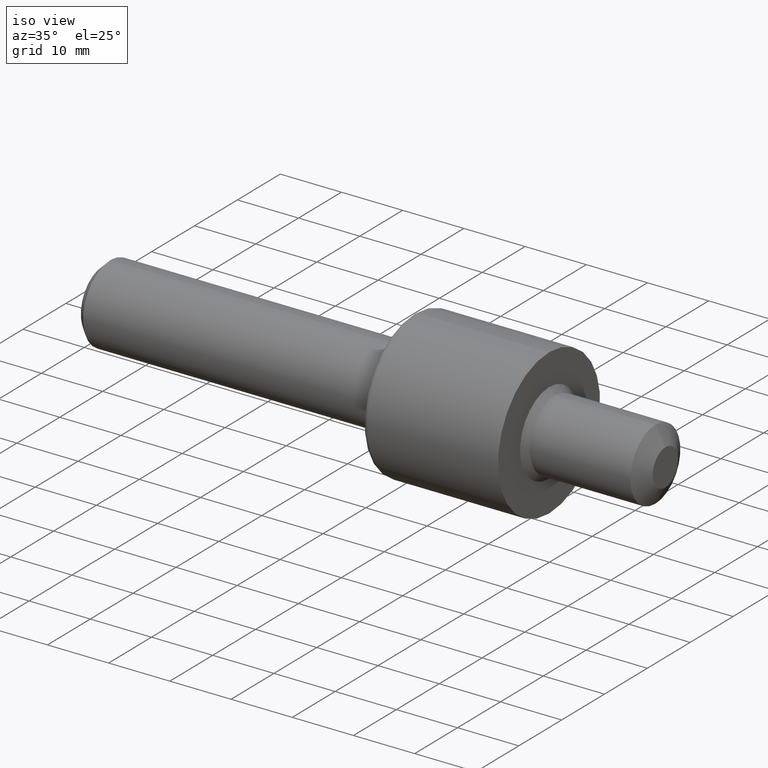
[diagram: clean part render]
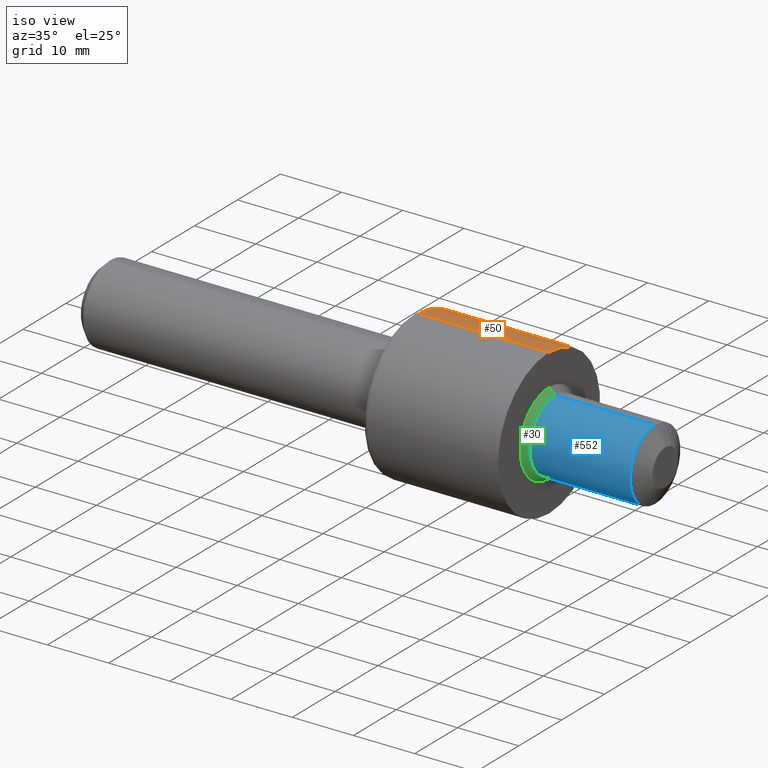
[diagram: same view with three faces highlighted in distinct colors, each labeled with its STEP entity id]
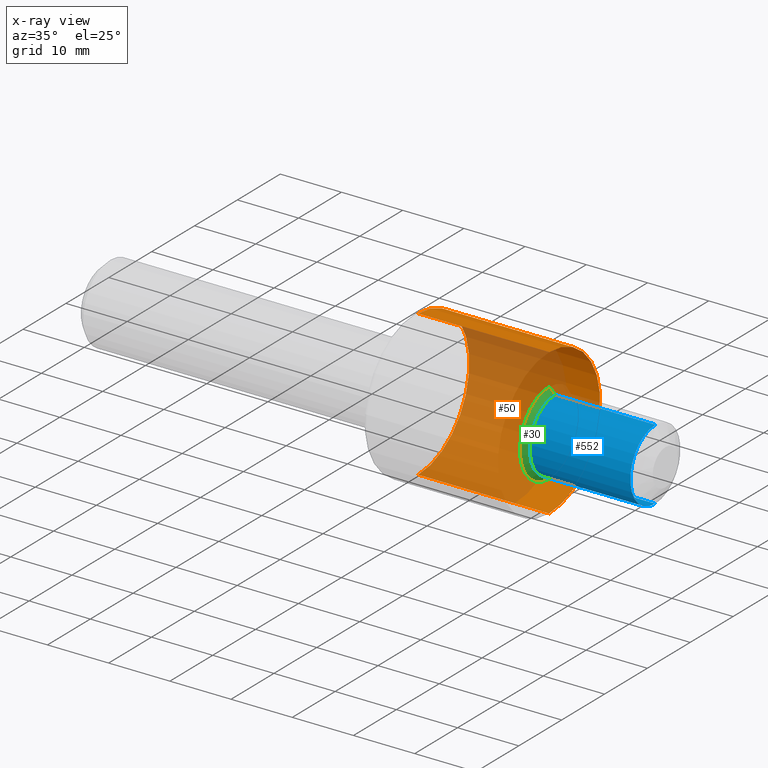
[diagram: x-ray of the same camera — body ghosted, the three highlighted faces saturated]
A machine part, iso view with three faces highlighted in distinct colors.
The next image is the same camera in x-ray (body ghosted, the three faces saturated) — at least one of them is partly hidden behind the body in this view.
Their STEP definitions:

[orange] entity #50 — the highlighted cylindrical surface (partial cylindrical patch) has radius 11.9126 mm, axis along (-1, -0, -0).
#4 = EDGE_CURVE ( 'NONE', #401, #381, #480, .T. ) ;
#14 = CARTESIAN_POINT ( 'NONE',  ( 2.871999999999999886, 5.743593488001086150E-17, -0.4689999999999999725 ) ) ;
#43 = DIRECTION ( 'NONE',  ( 0.0000000000000000000, 0.0000000000000000000, 1.000000000000000000 ) ) ;
#50 = ADVANCED_FACE ( 'NONE', ( #192 ), #104, .T. ) ;
#80 = AXIS2_PLACEMENT_3D ( 'NONE', #294, #321, #541 ) ;
#97 = EDGE_CURVE ( 'NONE', #401, #270, #430, .T. ) ;
#104 = CYLINDRICAL_SURFACE ( 'NONE', #503, 0.4689999999999999725 ) ;
#107 = VERTEX_POINT ( 'NONE', #243 ) ;
#130 = DIRECTION ( 'NONE',  ( -1.000000000000000000, -0.0000000000000000000, -0.0000000000000000000 ) ) ;
#148 = EDGE_CURVE ( 'NONE', #381, #107, #353, .T. ) ;
#187 = EDGE_CURVE ( 'NONE', #270, #107, #188, .T. ) ;
#188 = LINE ( 'NONE', #404, #422 ) ;
#192 = FACE_OUTER_BOUND ( 'NONE', #359, .T. ) ;
#243 = CARTESIAN_POINT ( 'NONE',  ( 2.029999999999999805, 5.743593488001086150E-17, -0.4689999999999999725 ) ) ;
#260 = DIRECTION ( 'NONE',  ( 0.0000000000000000000, 0.0000000000000000000, 1.000000000000000000 ) ) ;
#270 = VERTEX_POINT ( 'NONE', #14 ) ;
#273 = ORIENTED_EDGE ( 'NONE', *, *, #187, .T. ) ;
#276 = DIRECTION ( 'NONE',  ( -1.000000000000000000, -0.0000000000000000000, -0.0000000000000000000 ) ) ;
#282 = VECTOR ( 'NONE', #561, 39.37007874015748143 ) ;
#294 = CARTESIAN_POINT ( 'NONE',  ( 2.029999999999999805, 0.0000000000000000000, 0.0000000000000000000 ) ) ;
#297 = CARTESIAN_POINT ( 'NONE',  ( 0.0000000000000000000, 0.0000000000000000000, 0.4689999999999999725 ) ) ;
#307 = CARTESIAN_POINT ( 'NONE',  ( 2.029999999999999805, 0.0000000000000000000, 0.4689999999999999725 ) ) ;
#321 = DIRECTION ( 'NONE',  ( -1.000000000000000000, -0.0000000000000000000, -0.0000000000000000000 ) ) ;
#331 = CARTESIAN_POINT ( 'NONE',  ( 2.871999999999999886, 0.0000000000000000000, 0.0000000000000000000 ) ) ;
#338 = AXIS2_PLACEMENT_3D ( 'NONE', #331, #563, #260 ) ;
#343 = ORIENTED_EDGE ( 'NONE', *, *, #4, .F. ) ;
#353 = CIRCLE ( 'NONE', #80, 0.4689999999999999725 ) ;
#359 = EDGE_LOOP ( 'NONE', ( #461, #273, #536, #343 ) ) ;
#381 = VERTEX_POINT ( 'NONE', #307 ) ;
#401 = VERTEX_POINT ( 'NONE', #532 ) ;
#404 = CARTESIAN_POINT ( 'NONE',  ( 0.0000000000000000000, 5.743593488001086150E-17, -0.4689999999999999725 ) ) ;
#422 = VECTOR ( 'NONE', #276, 39.37007874015748143 ) ;
#430 = CIRCLE ( 'NONE', #338, 0.4689999999999999725 ) ;
#461 = ORIENTED_EDGE ( 'NONE', *, *, #97, .T. ) ;
#480 = LINE ( 'NONE', #297, #282 ) ;
#503 = AXIS2_PLACEMENT_3D ( 'NONE', #555, #130, #43 ) ;
#532 = CARTESIAN_POINT ( 'NONE',  ( 2.871999999999999886, 0.0000000000000000000, 0.4689999999999999725 ) ) ;
#536 = ORIENTED_EDGE ( 'NONE', *, *, #148, .F. ) ;
#541 = DIRECTION ( 'NONE',  ( 0.0000000000000000000, 0.0000000000000000000, 1.000000000000000000 ) ) ;
#555 = CARTESIAN_POINT ( 'NONE',  ( 0.0000000000000000000, 0.0000000000000000000, 0.0000000000000000000 ) ) ;
#561 = DIRECTION ( 'NONE',  ( -1.000000000000000000, -0.0000000000000000000, -0.0000000000000000000 ) ) ;
#563 = DIRECTION ( 'NONE',  ( -1.000000000000000000, -0.0000000000000000000, -0.0000000000000000000 ) ) ;

[blue] entity #552 — the highlighted cylindrical surface (partial cylindrical patch) has radius 5.8293 mm, axis along (-1, -0, -0).
#29 = CARTESIAN_POINT ( 'NONE',  ( 3.555000000000000160, 2.810564404043175550E-17, -0.2295000000000000095 ) ) ;
#68 = ORIENTED_EDGE ( 'NONE', *, *, #115, .T. ) ;
#77 = AXIS2_PLACEMENT_3D ( 'NONE', #198, #174, #539 ) ;
#89 = VERTEX_POINT ( 'NONE', #222 ) ;
#103 = ORIENTED_EDGE ( 'NONE', *, *, #152, .F. ) ;
#113 = LINE ( 'NONE', #161, #410 ) ;
#115 = EDGE_CURVE ( 'NONE', #272, #89, #341, .T. ) ;
#122 = ORIENTED_EDGE ( 'NONE', *, *, #389, .T. ) ;
#132 = DIRECTION ( 'NONE',  ( 0.0000000000000000000, 0.0000000000000000000, 1.000000000000000000 ) ) ;
#152 = EDGE_CURVE ( 'NONE', #504, #207, #487, .T. ) ;
#161 = CARTESIAN_POINT ( 'NONE',  ( 0.0000000000000000000, 2.810564404043175550E-17, -0.2295000000000000095 ) ) ;
#174 = DIRECTION ( 'NONE',  ( -1.000000000000000000, -0.0000000000000000000, -0.0000000000000000000 ) ) ;
#176 = VECTOR ( 'NONE', #183, 39.37007874015748143 ) ;
#178 = CARTESIAN_POINT ( 'NONE',  ( 0.0000000000000000000, 0.0000000000000000000, 0.2295000000000000095 ) ) ;
#183 = DIRECTION ( 'NONE',  ( -1.000000000000000000, -0.0000000000000000000, -0.0000000000000000000 ) ) ;
#198 = CARTESIAN_POINT ( 'NONE',  ( 0.0000000000000000000, 0.0000000000000000000, 0.0000000000000000000 ) ) ;
#207 = VERTEX_POINT ( 'NONE', #322 ) ;
#212 = EDGE_LOOP ( 'NONE', ( #525, #68, #122, #103 ) ) ;
#222 = CARTESIAN_POINT ( 'NONE',  ( 3.555000000000000160, 0.0000000000000000000, 0.2295000000000000095 ) ) ;
#244 = DIRECTION ( 'NONE',  ( -1.000000000000000000, -0.0000000000000000000, -0.0000000000000000000 ) ) ;
#247 = DIRECTION ( 'NONE',  ( -1.000000000000000000, -0.0000000000000000000, -0.0000000000000000000 ) ) ;
#261 = FACE_OUTER_BOUND ( 'NONE', #212, .T. ) ;
#272 = VERTEX_POINT ( 'NONE', #29 ) ;
#313 = EDGE_CURVE ( 'NONE', #272, #504, #113, .T. ) ;
#322 = CARTESIAN_POINT ( 'NONE',  ( 2.909000000000002029, 0.0000000000000000000, 0.2295000000000000095 ) ) ;
#341 = CIRCLE ( 'NONE', #517, 0.2295000000000000095 ) ;
#389 = EDGE_CURVE ( 'NONE', #89, #207, #511, .T. ) ;
#410 = VECTOR ( 'NONE', #433, 39.37007874015748143 ) ;
#433 = DIRECTION ( 'NONE',  ( -1.000000000000000000, -0.0000000000000000000, -0.0000000000000000000 ) ) ;
#482 = CYLINDRICAL_SURFACE ( 'NONE', #77, 0.2295000000000000095 ) ;
#483 = DIRECTION ( 'NONE',  ( 0.0000000000000000000, 0.0000000000000000000, 1.000000000000000000 ) ) ;
#487 = CIRCLE ( 'NONE', #531, 0.2295000000000000095 ) ;
#488 = CARTESIAN_POINT ( 'NONE',  ( 2.909000000000002029, 3.037124061885436008E-17, -0.2295000000000000095 ) ) ;
#504 = VERTEX_POINT ( 'NONE', #488 ) ;
#511 = LINE ( 'NONE', #178, #176 ) ;
#517 = AXIS2_PLACEMENT_3D ( 'NONE', #522, #244, #483 ) ;
#522 = CARTESIAN_POINT ( 'NONE',  ( 3.555000000000000160, 0.0000000000000000000, 0.0000000000000000000 ) ) ;
#525 = ORIENTED_EDGE ( 'NONE', *, *, #313, .F. ) ;
#531 = AXIS2_PLACEMENT_3D ( 'NONE', #558, #247, #132 ) ;
#539 = DIRECTION ( 'NONE',  ( 0.0000000000000000000, 0.0000000000000000000, 1.000000000000000000 ) ) ;
#552 = ADVANCED_FACE ( 'NONE', ( #261 ), #482, .T. ) ;
#558 = CARTESIAN_POINT ( 'NONE',  ( 2.909000000000002029, 0.0000000000000000000, 0.0000000000000000000 ) ) ;

[green] entity #30 — the highlighted conical surface has half-angle 45 deg.
#30 = ADVANCED_FACE ( 'NONE', ( #551 ), #295, .T. ) ;
#35 = ORIENTED_EDGE ( 'NONE', *, *, #399, .F. ) ;
#38 = ORIENTED_EDGE ( 'NONE', *, *, #339, .T. ) ;
#45 = CIRCLE ( 'NONE', #437, 0.2665000000000000147 ) ;
#63 = CARTESIAN_POINT ( 'NONE',  ( 2.909000000000002029, 0.0000000000000000000, 0.2295000000000000095 ) ) ;
#74 = VERTEX_POINT ( 'NONE', #547 ) ;
#94 = CARTESIAN_POINT ( 'NONE',  ( 2.909000000000002029, 0.0000000000000000000, 0.0000000000000000000 ) ) ;
#106 = DIRECTION ( 'NONE',  ( -1.000000000000000000, -0.0000000000000000000, -0.0000000000000000000 ) ) ;
#117 = DIRECTION ( 'NONE',  ( 0.0000000000000000000, 0.0000000000000000000, 1.000000000000000000 ) ) ;
#126 = VERTEX_POINT ( 'NONE', #409 ) ;
#132 = DIRECTION ( 'NONE',  ( 0.0000000000000000000, 0.0000000000000000000, 1.000000000000000000 ) ) ;
#149 = EDGE_LOOP ( 'NONE', ( #35, #179, #38, #350 ) ) ;
#151 = VECTOR ( 'NONE', #537, 39.37007874015748143 ) ;
#152 = EDGE_CURVE ( 'NONE', #504, #207, #487, .T. ) ;
#179 = ORIENTED_EDGE ( 'NONE', *, *, #152, .T. ) ;
#203 = DIRECTION ( 'NONE',  ( 0.0000000000000000000, 0.0000000000000000000, 1.000000000000000000 ) ) ;
#207 = VERTEX_POINT ( 'NONE', #322 ) ;
#247 = DIRECTION ( 'NONE',  ( -1.000000000000000000, -0.0000000000000000000, -0.0000000000000000000 ) ) ;
#271 = VECTOR ( 'NONE', #462, 39.37007874015748143 ) ;
#274 = CARTESIAN_POINT ( 'NONE',  ( 2.909000000000002029, 2.810564404043175550E-17, -0.2295000000000000095 ) ) ;
#275 = CARTESIAN_POINT ( 'NONE',  ( 2.871999999999999886, 0.0000000000000000000, 0.0000000000000000000 ) ) ;
#295 = CONICAL_SURFACE ( 'NONE', #360, 0.2295000000000000095, 0.7853981633974163046 ) ;
#322 = CARTESIAN_POINT ( 'NONE',  ( 2.909000000000002029, 0.0000000000000000000, 0.2295000000000000095 ) ) ;
#329 = DIRECTION ( 'NONE',  ( -1.000000000000000000, -0.0000000000000000000, -0.0000000000000000000 ) ) ;
#339 = EDGE_CURVE ( 'NONE', #207, #126, #506, .T. ) ;
#350 = ORIENTED_EDGE ( 'NONE', *, *, #432, .F. ) ;
#360 = AXIS2_PLACEMENT_3D ( 'NONE', #94, #329, #117 ) ;
#399 = EDGE_CURVE ( 'NONE', #504, #74, #472, .T. ) ;
#409 = CARTESIAN_POINT ( 'NONE',  ( 2.871999999999999886, 0.0000000000000000000, 0.2665000000000000147 ) ) ;
#432 = EDGE_CURVE ( 'NONE', #74, #126, #45, .T. ) ;
#437 = AXIS2_PLACEMENT_3D ( 'NONE', #275, #106, #203 ) ;
#462 = DIRECTION ( 'NONE',  ( -0.7071067811865701103, 8.659560562354656757E-17, -0.7071067811865249242 ) ) ;
#472 = LINE ( 'NONE', #274, #271 ) ;
#487 = CIRCLE ( 'NONE', #531, 0.2295000000000000095 ) ;
#488 = CARTESIAN_POINT ( 'NONE',  ( 2.909000000000002029, 3.037124061885436008E-17, -0.2295000000000000095 ) ) ;
#504 = VERTEX_POINT ( 'NONE', #488 ) ;
#506 = LINE ( 'NONE', #63, #151 ) ;
#531 = AXIS2_PLACEMENT_3D ( 'NONE', #558, #247, #132 ) ;
#537 = DIRECTION ( 'NONE',  ( -0.7071067811865701103, 0.0000000000000000000, 0.7071067811865249242 ) ) ;
#547 = CARTESIAN_POINT ( 'NONE',  ( 2.871999999999999886, 3.263683719727696466E-17, -0.2665000000000000147 ) ) ;
#551 = FACE_OUTER_BOUND ( 'NONE', #149, .T. ) ;
#558 = CARTESIAN_POINT ( 'NONE',  ( 2.909000000000002029, 0.0000000000000000000, 0.0000000000000000000 ) ) ;